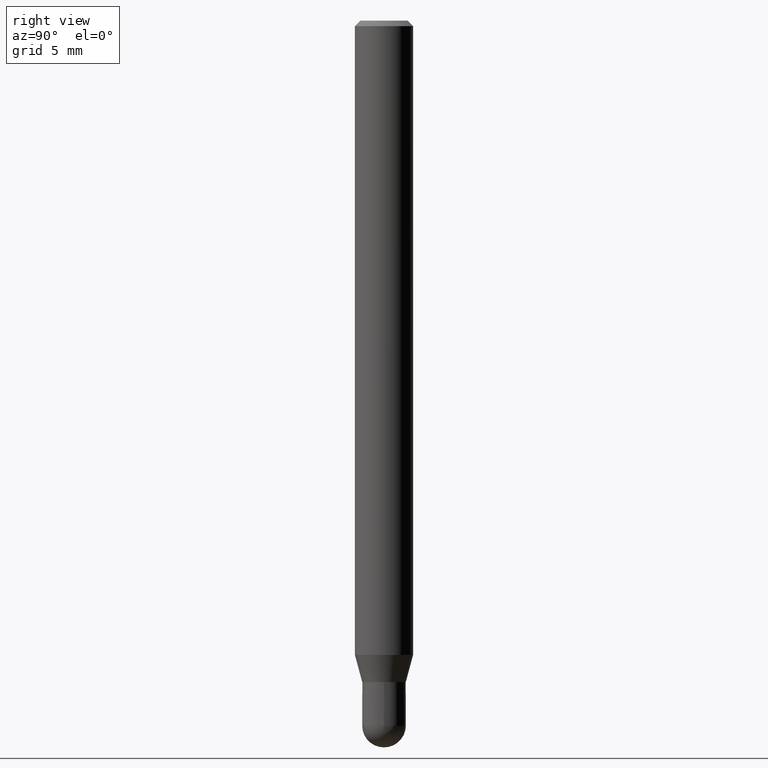
[diagram: clean part render]
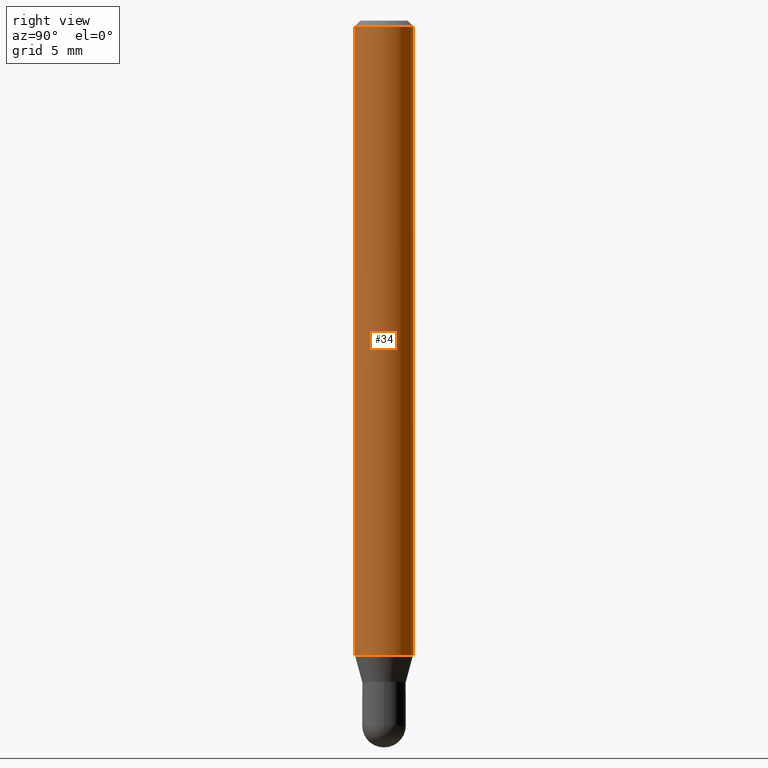
[diagram: same view with one face highlighted and labeled with its STEP entity id]
A machine part, right view. The second image highlights one B-rep face of the part: STEP entity #34.
In plain terms, the highlighted cylindrical surface (edge-blend (fillet) strip) has radius 2.0002 mm, axis along (-0, 0, 1).
Its self-contained STEP definition (entity closure, byte-faithful):
#2 = CIRCLE ( 'NONE', #288, 0.07875000000000000056 ) ;
#16 = CARTESIAN_POINT ( 'NONE',  ( -5.499083108677930499E-16, -0.07875000000000004219, -0.01499999999999948944 ) ) ;
#34 = ADVANCED_FACE ( 'NONE', ( #368 ), #489, .T. ) ;
#36 = EDGE_LOOP ( 'NONE', ( #82, #233, #39, #57 ) ) ;
#39 = ORIENTED_EDGE ( 'NONE', *, *, #211, .F. ) ;
#49 = DIRECTION ( 'NONE',  ( -2.445166276302785085E-29, 3.491914578853604397E-15, 1.000000000000000000 ) ) ;
#51 = CARTESIAN_POINT ( 'NONE',  ( 5.595524044111208086E-16, 0.07874999999999401923, -1.717978599090896230 ) ) ;
#54 = VERTEX_POINT ( 'NONE', #16 ) ;
#57 = ORIENTED_EDGE ( 'NONE', *, *, #488, .F. ) ;
#82 = ORIENTED_EDGE ( 'NONE', *, *, #137, .T. ) ;
#119 = DIRECTION ( 'NONE',  ( -6.982962677686264344E-15, -1.000000000000000000, 3.496114991891765576E-15 ) ) ;
#133 = VERTEX_POINT ( 'NONE', #436 ) ;
#137 = EDGE_CURVE ( 'NONE', #322, #505, #236, .T. ) ;
#138 = AXIS2_PLACEMENT_3D ( 'NONE', #249, #415, #215 ) ;
#147 = CARTESIAN_POINT ( 'NONE',  ( -5.499083108677514374E-16, -0.07875000000000596800, -1.717978599090895564 ) ) ;
#200 = DIRECTION ( 'NONE',  ( -2.445166276302785085E-29, 3.491914578853604397E-15, 1.000000000000000000 ) ) ;
#211 = EDGE_CURVE ( 'NONE', #54, #133, #2, .T. ) ;
#215 = DIRECTION ( 'NONE',  ( -6.982962677686264344E-15, -1.000000000000000000, 3.491914578853604002E-15 ) ) ;
#224 = LINE ( 'NONE', #386, #306 ) ;
#231 = CARTESIAN_POINT ( 'NONE',  ( 4.200743333906961214E-29, -5.999034516323990966E-15, -1.717978599090895786 ) ) ;
#233 = ORIENTED_EDGE ( 'NONE', *, *, #400, .T. ) ;
#236 = CIRCLE ( 'NONE', #429, 0.07875000000000000056 ) ;
#238 = CARTESIAN_POINT ( 'NONE',  ( -5.499083108677933457E-16, -0.07875000000000000056, 2.749882730847213270E-16 ) ) ;
#249 = CARTESIAN_POINT ( 'NONE',  ( 0.000000000000000000, 0.000000000000000000, 0.000000000000000000 ) ) ;
#288 = AXIS2_PLACEMENT_3D ( 'NONE', #311, #474, #119 ) ;
#306 = VECTOR ( 'NONE', #341, 39.37007874015748143 ) ;
#311 = CARTESIAN_POINT ( 'NONE',  ( 3.667749414454120420E-31, -5.237871868280324701E-17, -0.01499999999999976526 ) ) ;
#322 = VERTEX_POINT ( 'NONE', #147 ) ;
#341 = DIRECTION ( 'NONE',  ( -2.445166276302785085E-29, 3.491914578853604397E-15, 1.000000000000000000 ) ) ;
#356 = DIRECTION ( 'NONE',  ( -6.982962677686264344E-15, -1.000000000000000000, 3.469013325287953293E-15 ) ) ;
#368 = FACE_OUTER_BOUND ( 'NONE', #36, .T. ) ;
#386 = CARTESIAN_POINT ( 'NONE',  ( 5.595524044110787031E-16, 0.07875000000000000056, -2.749882730847213270E-16 ) ) ;
#390 = VECTOR ( 'NONE', #49, 39.37007874015748143 ) ;
#400 = EDGE_CURVE ( 'NONE', #505, #133, #224, .T. ) ;
#402 = LINE ( 'NONE', #238, #390 ) ;
#415 = DIRECTION ( 'NONE',  ( -2.445166276302785085E-29, 3.491914578853604397E-15, 1.000000000000000000 ) ) ;
#429 = AXIS2_PLACEMENT_3D ( 'NONE', #231, #200, #356 ) ;
#436 = CARTESIAN_POINT ( 'NONE',  ( 5.595524044111210058E-16, 0.07874999999999994504, -0.01500000000000004108 ) ) ;
#474 = DIRECTION ( 'NONE',  ( -2.445166276302785085E-29, 3.491914578853604397E-15, 1.000000000000000000 ) ) ;
#488 = EDGE_CURVE ( 'NONE', #322, #54, #402, .T. ) ;
#489 = CYLINDRICAL_SURFACE ( 'NONE', #138, 0.07875000000000000056 ) ;
#505 = VERTEX_POINT ( 'NONE', #51 ) ;